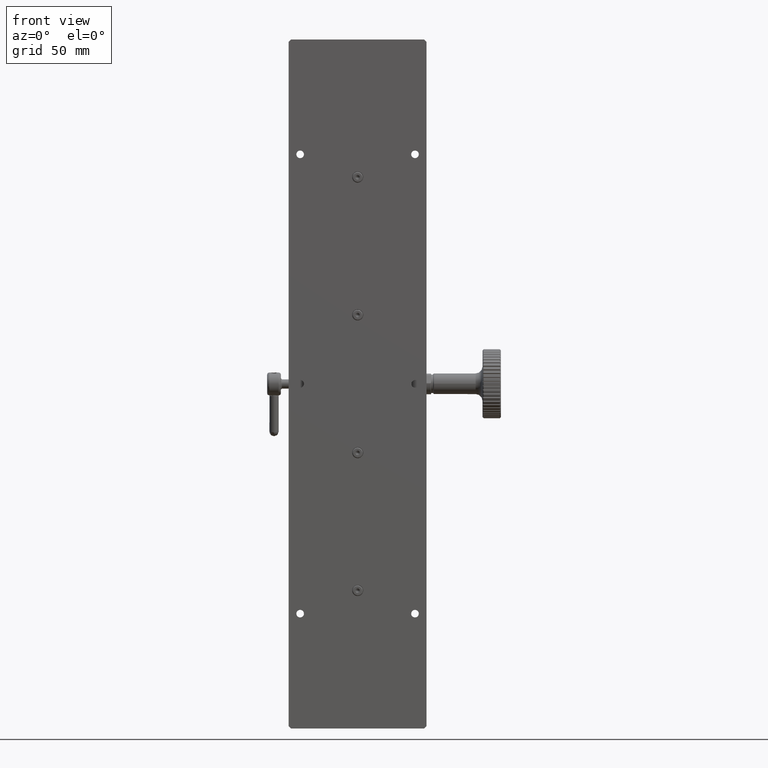
[diagram: clean part render]
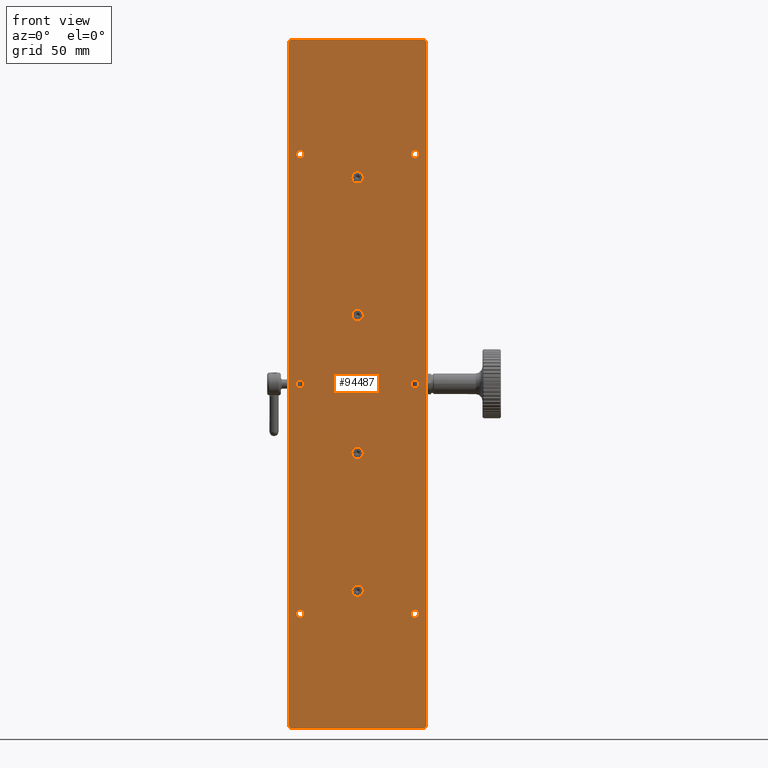
[diagram: same view with one face highlighted and labeled with its STEP entity id]
A machine part, front view. The second image highlights one B-rep face of the part: STEP entity #94487.
In plain terms, the highlighted planar face has unit normal (-0, 1, 0).
Its self-contained STEP definition (entity closure, byte-faithful):
#93 = CARTESIAN_POINT ( 'NONE',  ( 141.9082209827906524, 51.52535012998672670, -85.89519372890083559 ) ) ;
#1538 = ORIENTED_EDGE ( 'NONE', *, *, #13545, .F. ) ;
#2608 = CARTESIAN_POINT ( 'NONE',  ( 82.90822098279065244, 51.52535012998632169, -84.89519372890084981 ) ) ;
#3996 = ORIENTED_EDGE ( 'NONE', *, *, #88351, .F. ) ;
#4807 = VERTEX_POINT ( 'NONE', #17915 ) ;
#5998 = VERTEX_POINT ( 'NONE', #63259 ) ;
#6022 = ORIENTED_EDGE ( 'NONE', *, *, #71012, .F. ) ;
#6259 = DIRECTION ( 'NONE',  ( -0.000000000000000000, -0.000000000000000000, -1.000000000000000000 ) ) ;
#6464 = CARTESIAN_POINT ( 'NONE',  ( 112.9082209827906382, 51.52535012998652775, 154.1048062710991360 ) ) ;
#7676 = CARTESIAN_POINT ( 'NONE',  ( 137.9082209827906524, 51.52535012998669828, 164.1048062710991360 ) ) ;
#9431 = VERTEX_POINT ( 'NONE', #93 ) ;
#9739 = VERTEX_POINT ( 'NONE', #80684 ) ;
#9809 = EDGE_CURVE ( 'NONE', #5998, #71168, #43016, .T. ) ;
#10210 = EDGE_LOOP ( 'NONE', ( #62406 ) ) ;
#11463 = VECTOR ( 'NONE', #42127, 1000.000000000000000 ) ;
#12353 = AXIS2_PLACEMENT_3D ( 'NONE', #12747, #100225, #28800 ) ;
#12747 = CARTESIAN_POINT ( 'NONE',  ( 142.9082209827906524, 51.52535012998673380, 214.1048062710991644 ) ) ;
#12748 = ORIENTED_EDGE ( 'NONE', *, *, #57527, .F. ) ;
#13545 = EDGE_CURVE ( 'NONE', #83227, #47906, #17814, .T. ) ;
#14807 = DIRECTION ( 'NONE',  ( -0.7071067811865474617, 0.000000000000000000, 0.7071067811865474617 ) ) ;
#14831 = AXIS2_PLACEMENT_3D ( 'NONE', #40201, #71778, #24667 ) ;
#15850 = VECTOR ( 'NONE', #48679, 1000.000000000000114 ) ;
#17814 = LINE ( 'NONE', #25060, #11463 ) ;
#17866 = CIRCLE ( 'NONE', #31081, 1.649999999999998579 ) ;
#17915 = CARTESIAN_POINT ( 'NONE',  ( 142.9082209827906524, 51.52535012998672670, -84.89519372890087823 ) ) ;
#18529 = VERTEX_POINT ( 'NONE', #64614 ) ;
#19390 = DIRECTION ( 'NONE',  ( 6.982962677686266711E-15, -1.000000000000000000, 0.000000000000000000 ) ) ;
#20164 = ORIENTED_EDGE ( 'NONE', *, *, #35047, .F. ) ;
#20533 = FACE_BOUND ( 'NONE', #56835, .T. ) ;
#21565 = CARTESIAN_POINT ( 'NONE',  ( 142.9082209827906524, 51.52535012998673380, -85.89519372890083559 ) ) ;
#22816 = ORIENTED_EDGE ( 'NONE', *, *, #32580, .F. ) ;
#23184 = EDGE_LOOP ( 'NONE', ( #71163 ) ) ;
#23652 = AXIS2_PLACEMENT_3D ( 'NONE', #7676, #32521, #64078 ) ;
#23796 = CIRCLE ( 'NONE', #46932, 2.500000000000002220 ) ;
#23806 = ORIENTED_EDGE ( 'NONE', *, *, #37402, .F. ) ;
#23912 = DIRECTION ( 'NONE',  ( -1.000000000000000000, -8.410780489584597367E-15, 0.000000000000000000 ) ) ;
#24667 = DIRECTION ( 'NONE',  ( -1.000000000000000000, -8.410780489584597367E-15, 0.000000000000000000 ) ) ;
#24942 = CIRCLE ( 'NONE', #64542, 1.649999999999984812 ) ;
#25013 = EDGE_LOOP ( 'NONE', ( #75698 ) ) ;
#25060 = CARTESIAN_POINT ( 'NONE',  ( 142.9082209827906524, 51.52535012998673380, 214.1048062710991644 ) ) ;
#25145 = CARTESIAN_POINT ( 'NONE',  ( 115.4082209827906667, 51.52535012998654906, 34.10480627109914309 ) ) ;
#25197 = AXIS2_PLACEMENT_3D ( 'NONE', #25994, #95905, #34266 ) ;
#25263 = LINE ( 'NONE', #65618, #64933 ) ;
#25450 = CARTESIAN_POINT ( 'NONE',  ( 112.9082209827906524, 51.52535012998652775, 94.10480627109913598 ) ) ;
#25994 = CARTESIAN_POINT ( 'NONE',  ( 87.90822098279066665, 51.52535012998633590, -35.89519372890089244 ) ) ;
#26789 = ORIENTED_EDGE ( 'NONE', *, *, #100226, .F. ) ;
#26830 = CIRCLE ( 'NONE', #25197, 1.649999999999998579 ) ;
#28095 = VECTOR ( 'NONE', #80953, 1000.000000000000114 ) ;
#28296 = FACE_BOUND ( 'NONE', #33281, .T. ) ;
#28800 = DIRECTION ( 'NONE',  ( -1.000000000000000000, -6.982962677686266711E-15, 0.000000000000000000 ) ) ;
#29164 = EDGE_CURVE ( 'NONE', #32011, #32011, #17866, .T. ) ;
#30669 = VECTOR ( 'NONE', #80399, 1000.000000000000000 ) ;
#31081 = AXIS2_PLACEMENT_3D ( 'NONE', #40875, #55367, #39841 ) ;
#31290 = DIRECTION ( 'NONE',  ( 6.982962677686266711E-15, -1.000000000000000000, 0.000000000000000000 ) ) ;
#31717 = EDGE_CURVE ( 'NONE', #56842, #56842, #59457, .T. ) ;
#32011 = VERTEX_POINT ( 'NONE', #47024 ) ;
#32521 = DIRECTION ( 'NONE',  ( 6.982962677686266711E-15, -1.000000000000000000, -0.000000000000000000 ) ) ;
#32580 = EDGE_CURVE ( 'NONE', #96715, #96715, #39642, .T. ) ;
#32921 = CARTESIAN_POINT ( 'NONE',  ( 86.25822098279066097, 51.52535012998632169, -35.89519372890089244 ) ) ;
#33281 = EDGE_LOOP ( 'NONE', ( #34499 ) ) ;
#33322 = LINE ( 'NONE', #88701, #28095 ) ;
#34266 = DIRECTION ( 'NONE',  ( -1.000000000000000000, -8.410780489584526369E-15, 0.000000000000000000 ) ) ;
#34499 = ORIENTED_EDGE ( 'NONE', *, *, #73584, .F. ) ;
#34763 = CIRCLE ( 'NONE', #43036, 2.500000000000002220 ) ;
#35047 = EDGE_CURVE ( 'NONE', #18529, #18529, #34763, .T. ) ;
#35199 = LINE ( 'NONE', #2608, #15850 ) ;
#35263 = EDGE_LOOP ( 'NONE', ( #23806 ) ) ;
#36215 = AXIS2_PLACEMENT_3D ( 'NONE', #81024, #19390, #50952 ) ;
#36483 = EDGE_CURVE ( 'NONE', #72387, #72387, #24942, .T. ) ;
#37368 = CARTESIAN_POINT ( 'NONE',  ( 142.9082209827906524, 51.52535012998673380, 213.1048062710991644 ) ) ;
#37402 = EDGE_CURVE ( 'NONE', #9739, #9739, #54633, .T. ) ;
#38035 = DIRECTION ( 'NONE',  ( 1.000000000000000000, 8.326672684688666165E-15, 0.000000000000000000 ) ) ;
#39173 = DIRECTION ( 'NONE',  ( 6.982962677686266711E-15, -1.000000000000000000, -0.000000000000000000 ) ) ;
#39642 = CIRCLE ( 'NONE', #14831, 1.649999999999984812 ) ;
#39841 = DIRECTION ( 'NONE',  ( -1.000000000000000000, -8.410780489584526369E-15, 0.000000000000000000 ) ) ;
#40201 = CARTESIAN_POINT ( 'NONE',  ( 137.9082209827906524, 51.52535012998669828, 64.10480627109913598 ) ) ;
#40380 = EDGE_LOOP ( 'NONE', ( #22816 ) ) ;
#40875 = CARTESIAN_POINT ( 'NONE',  ( 87.90822098279066665, 51.52535012998633590, 64.10480627109913598 ) ) ;
#41785 = EDGE_LOOP ( 'NONE', ( #6022, #69280, #62306, #1538, #66246, #59113, #12748, #26789 ) ) ;
#42127 = DIRECTION ( 'NONE',  ( 1.000000000000000000, 6.982962677686266711E-15, -0.000000000000000000 ) ) ;
#42328 = CARTESIAN_POINT ( 'NONE',  ( 136.2582209827906752, 51.52535012998668407, -35.89519372890089244 ) ) ;
#43016 = LINE ( 'NONE', #59052, #67590 ) ;
#43036 = AXIS2_PLACEMENT_3D ( 'NONE', #6464, #31290, #38035 ) ;
#44049 = DIRECTION ( 'NONE',  ( 0.000000000000000000, 0.000000000000000000, 1.000000000000000000 ) ) ;
#44762 = AXIS2_PLACEMENT_3D ( 'NONE', #25450, #72568, #49755 ) ;
#44979 = DIRECTION ( 'NONE',  ( 1.000000000000000000, 8.326672684688666165E-15, 0.000000000000000000 ) ) ;
#46006 = ORIENTED_EDGE ( 'NONE', *, *, #31717, .F. ) ;
#46694 = CARTESIAN_POINT ( 'NONE',  ( 137.9082209827906524, 51.52535012998669828, -35.89519372890089244 ) ) ;
#46932 = AXIS2_PLACEMENT_3D ( 'NONE', #76074, #52240, #44979 ) ;
#47024 = CARTESIAN_POINT ( 'NONE',  ( 86.25822098279066097, 51.52535012998632169, 64.10480627109913598 ) ) ;
#47621 = LINE ( 'NONE', #62649, #53650 ) ;
#47906 = VERTEX_POINT ( 'NONE', #97176 ) ;
#48679 = DIRECTION ( 'NONE',  ( -0.7071067811865474617, 0.000000000000000000, 0.7071067811865474617 ) ) ;
#49449 = VERTEX_POINT ( 'NONE', #25145 ) ;
#49573 = DIRECTION ( 'NONE',  ( -0.7071067811865474617, 0.000000000000000000, -0.7071067811865474617 ) ) ;
#49755 = DIRECTION ( 'NONE',  ( 1.000000000000000000, 8.326672684688711919E-15, 0.000000000000000000 ) ) ;
#49771 = EDGE_CURVE ( 'NONE', #90475, #90475, #62583, .T. ) ;
#50557 = EDGE_LOOP ( 'NONE', ( #60382 ) ) ;
#50952 = DIRECTION ( 'NONE',  ( 1.000000000000000000, 8.326672684688666165E-15, 0.000000000000000000 ) ) ;
#51581 = FACE_BOUND ( 'NONE', #40380, .T. ) ;
#52089 = FACE_BOUND ( 'NONE', #23184, .T. ) ;
#52240 = DIRECTION ( 'NONE',  ( 6.982962677686266711E-15, -1.000000000000000000, 0.000000000000000000 ) ) ;
#53650 = VECTOR ( 'NONE', #6259, 1000.000000000000000 ) ;
#54139 = CARTESIAN_POINT ( 'NONE',  ( 141.9082209827906524, 51.52535012998673380, 214.1048062710991644 ) ) ;
#54628 = EDGE_CURVE ( 'NONE', #83227, #71168, #33322, .T. ) ;
#54633 = CIRCLE ( 'NONE', #44762, 2.499999999999988454 ) ;
#54858 = CARTESIAN_POINT ( 'NONE',  ( 83.90822098279066665, 51.52535012998642117, -85.89519372890083559 ) ) ;
#55367 = DIRECTION ( 'NONE',  ( 6.982962677686266711E-15, -1.000000000000000000, -0.000000000000000000 ) ) ;
#55680 = VERTEX_POINT ( 'NONE', #32921 ) ;
#56835 = EDGE_LOOP ( 'NONE', ( #20164 ) ) ;
#56842 = VERTEX_POINT ( 'NONE', #88944 ) ;
#57527 = EDGE_CURVE ( 'NONE', #58111, #5998, #35199, .T. ) ;
#58111 = VERTEX_POINT ( 'NONE', #54858 ) ;
#58806 = VECTOR ( 'NONE', #14807, 1000.000000000000114 ) ;
#59052 = CARTESIAN_POINT ( 'NONE',  ( 82.90822098279065244, 51.52535012998631458, 214.1048062710991644 ) ) ;
#59113 = ORIENTED_EDGE ( 'NONE', *, *, #9809, .F. ) ;
#59457 = CIRCLE ( 'NONE', #99185, 1.649999999999984812 ) ;
#59858 = FACE_BOUND ( 'NONE', #100857, .T. ) ;
#60358 = FACE_BOUND ( 'NONE', #35263, .T. ) ;
#60382 = ORIENTED_EDGE ( 'NONE', *, *, #84058, .F. ) ;
#61971 = DIRECTION ( 'NONE',  ( -1.000000000000000000, -8.410780489584597367E-15, 0.000000000000000000 ) ) ;
#62306 = ORIENTED_EDGE ( 'NONE', *, *, #100083, .T. ) ;
#62406 = ORIENTED_EDGE ( 'NONE', *, *, #49771, .F. ) ;
#62441 = VERTEX_POINT ( 'NONE', #102310 ) ;
#62583 = CIRCLE ( 'NONE', #36215, 2.500000000000002220 ) ;
#62649 = CARTESIAN_POINT ( 'NONE',  ( 142.9082209827906524, 51.52535012998673380, 214.1048062710991644 ) ) ;
#62986 = CARTESIAN_POINT ( 'NONE',  ( 87.90822098279065244, 51.52535012998633590, 164.1048062710991360 ) ) ;
#63259 = CARTESIAN_POINT ( 'NONE',  ( 82.90822098279065244, 51.52535012998632169, -84.89519372890083559 ) ) ;
#63751 = DIRECTION ( 'NONE',  ( 6.982962677686266711E-15, -1.000000000000000000, -0.000000000000000000 ) ) ;
#64078 = DIRECTION ( 'NONE',  ( -1.000000000000000000, -8.410780489584597367E-15, 0.000000000000000000 ) ) ;
#64542 = AXIS2_PLACEMENT_3D ( 'NONE', #46694, #63751, #23912 ) ;
#64614 = CARTESIAN_POINT ( 'NONE',  ( 115.4082209827906524, 51.52535012998654906, 154.1048062710991360 ) ) ;
#64933 = VECTOR ( 'NONE', #49573, 1000.000000000000114 ) ;
#65618 = CARTESIAN_POINT ( 'NONE',  ( 142.9082209827906240, 51.52535012998672670, -84.89519372890087823 ) ) ;
#65740 = EDGE_LOOP ( 'NONE', ( #46006 ) ) ;
#66246 = ORIENTED_EDGE ( 'NONE', *, *, #54628, .T. ) ;
#67590 = VECTOR ( 'NONE', #44049, 1000.000000000000000 ) ;
#68280 = CIRCLE ( 'NONE', #23652, 1.649999999999984812 ) ;
#69280 = ORIENTED_EDGE ( 'NONE', *, *, #95659, .F. ) ;
#71012 = EDGE_CURVE ( 'NONE', #4807, #9431, #25263, .T. ) ;
#71163 = ORIENTED_EDGE ( 'NONE', *, *, #36483, .F. ) ;
#71168 = VERTEX_POINT ( 'NONE', #76470 ) ;
#71778 = DIRECTION ( 'NONE',  ( 6.982962677686266711E-15, -1.000000000000000000, -0.000000000000000000 ) ) ;
#72387 = VERTEX_POINT ( 'NONE', #42328 ) ;
#72568 = DIRECTION ( 'NONE',  ( 6.982962677686266711E-15, -1.000000000000000000, 0.000000000000000000 ) ) ;
#73584 = EDGE_CURVE ( 'NONE', #62441, #62441, #68280, .T. ) ;
#75698 = ORIENTED_EDGE ( 'NONE', *, *, #29164, .F. ) ;
#76074 = CARTESIAN_POINT ( 'NONE',  ( 112.9082209827906524, 51.52535012998652775, 34.10480627109914309 ) ) ;
#76423 = FACE_BOUND ( 'NONE', #65740, .T. ) ;
#76470 = CARTESIAN_POINT ( 'NONE',  ( 82.90822098279065244, 51.52535012998632169, 213.1048062710991644 ) ) ;
#78712 = VERTEX_POINT ( 'NONE', #37368 ) ;
#80399 = DIRECTION ( 'NONE',  ( -1.000000000000000000, -6.982962677686266711E-15, 0.000000000000000000 ) ) ;
#80684 = CARTESIAN_POINT ( 'NONE',  ( 115.4082209827906524, 51.52535012998654906, 94.10480627109913598 ) ) ;
#80953 = DIRECTION ( 'NONE',  ( -0.7071067811865474617, 0.000000000000000000, -0.7071067811865474617 ) ) ;
#81024 = CARTESIAN_POINT ( 'NONE',  ( 112.9082209827906524, 51.52535012998652775, -25.89519372890085336 ) ) ;
#83175 = FACE_BOUND ( 'NONE', #10210, .T. ) ;
#83227 = VERTEX_POINT ( 'NONE', #91413 ) ;
#83686 = FACE_BOUND ( 'NONE', #50557, .T. ) ;
#84058 = EDGE_CURVE ( 'NONE', #55680, #55680, #26830, .T. ) ;
#84710 = LINE ( 'NONE', #54139, #58806 ) ;
#88351 = EDGE_CURVE ( 'NONE', #49449, #49449, #23796, .T. ) ;
#88701 = CARTESIAN_POINT ( 'NONE',  ( 83.90822098279068086, 51.52535012998632169, 214.1048062710991644 ) ) ;
#88944 = CARTESIAN_POINT ( 'NONE',  ( 86.25822098279066097, 51.52535012998632169, 164.1048062710991360 ) ) ;
#90475 = VERTEX_POINT ( 'NONE', #98758 ) ;
#91413 = CARTESIAN_POINT ( 'NONE',  ( 83.90822098279066665, 51.52535012998642117, 214.1048062710991360 ) ) ;
#91450 = FACE_BOUND ( 'NONE', #25013, .T. ) ;
#92482 = LINE ( 'NONE', #21565, #30669 ) ;
#94487 = ADVANCED_FACE ( 'NONE', ( #98700, #83175, #20533, #60358, #59858, #52089, #83686, #28296, #51581, #91450, #76423 ), #99727, .F. ) ;
#95659 = EDGE_CURVE ( 'NONE', #78712, #4807, #47621, .T. ) ;
#95691 = CARTESIAN_POINT ( 'NONE',  ( 136.2582209827906752, 51.52535012998668407, 64.10480627109913598 ) ) ;
#95905 = DIRECTION ( 'NONE',  ( 6.982962677686266711E-15, -1.000000000000000000, -0.000000000000000000 ) ) ;
#96715 = VERTEX_POINT ( 'NONE', #95691 ) ;
#97176 = CARTESIAN_POINT ( 'NONE',  ( 141.9082209827906524, 51.52535012998672670, 214.1048062710991644 ) ) ;
#98700 = FACE_OUTER_BOUND ( 'NONE', #41785, .T. ) ;
#98758 = CARTESIAN_POINT ( 'NONE',  ( 115.4082209827906667, 51.52535012998654906, -25.89519372890085336 ) ) ;
#99185 = AXIS2_PLACEMENT_3D ( 'NONE', #62986, #39173, #61971 ) ;
#99727 = PLANE ( 'NONE',  #12353 ) ;
#100083 = EDGE_CURVE ( 'NONE', #78712, #47906, #84710, .T. ) ;
#100225 = DIRECTION ( 'NONE',  ( -6.982962677686266711E-15, 1.000000000000000000, 0.000000000000000000 ) ) ;
#100226 = EDGE_CURVE ( 'NONE', #9431, #58111, #92482, .T. ) ;
#100857 = EDGE_LOOP ( 'NONE', ( #3996 ) ) ;
#102310 = CARTESIAN_POINT ( 'NONE',  ( 136.2582209827906752, 51.52535012998668407, 164.1048062710991360 ) ) ;